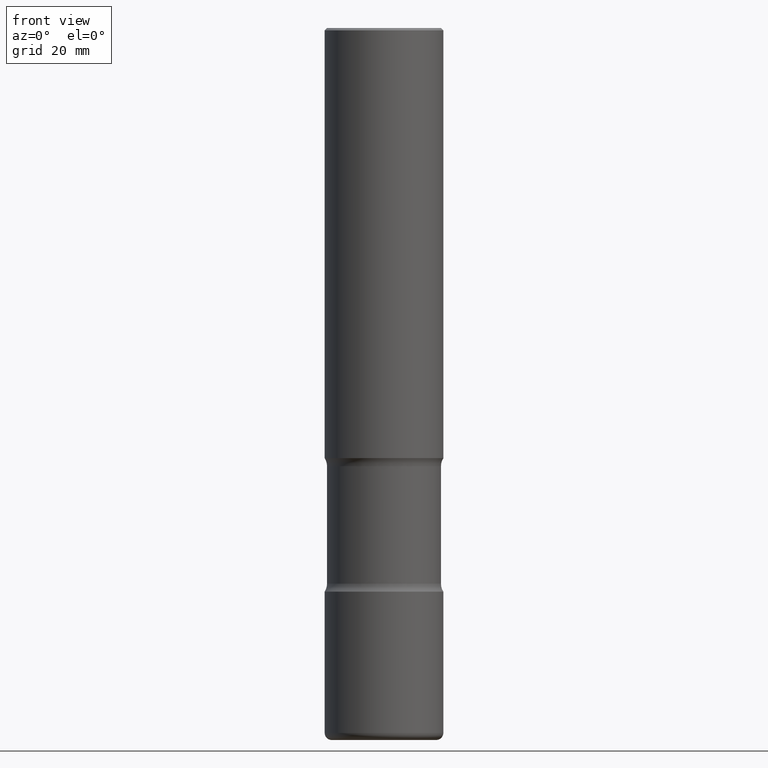
[diagram: clean part render]
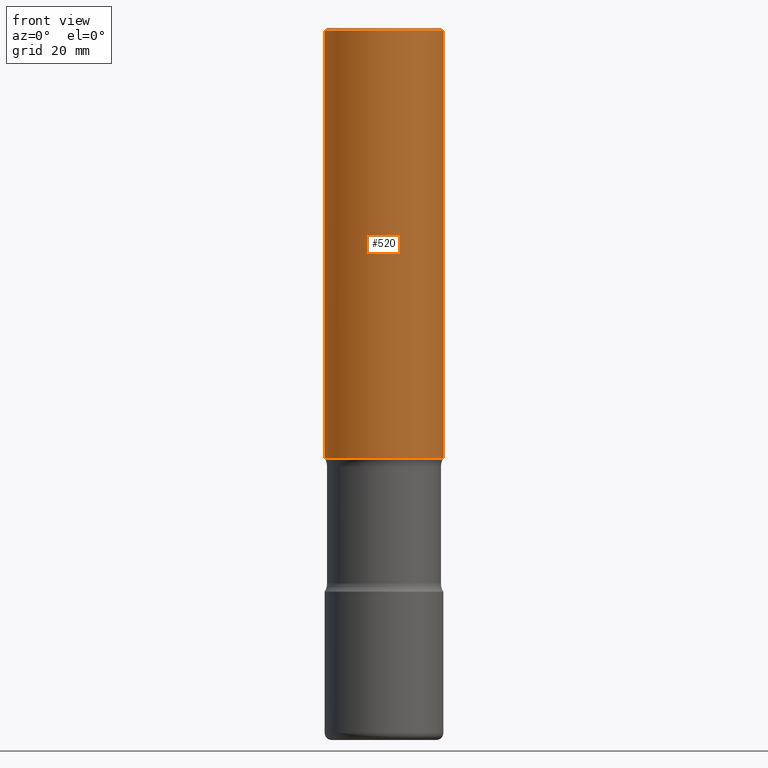
[diagram: same view with one face highlighted and labeled with its STEP entity id]
A machine part, front view. The second image highlights one B-rep face of the part: STEP entity #520.
In plain terms, the highlighted cylindrical surface (partial cylindrical patch) has radius 12.7 mm, axis along (-0, 0, 1).
Its self-contained STEP definition (entity closure, byte-faithful):
#2 = DIRECTION ( 'NONE',  ( -2.445468806185136877E-29, 3.491481338843145188E-15, 1.000000000000000000 ) ) ;
#6 = VECTOR ( 'NONE', #91, 39.37007874015748143 ) ;
#25 = EDGE_CURVE ( 'NONE', #494, #723, #437, .T. ) ;
#27 = DIRECTION ( 'NONE',  ( 1.000000000000000000, -6.982962677686266711E-15, 4.876176775795935793E-29 ) ) ;
#32 = EDGE_LOOP ( 'NONE', ( #552, #567, #670, #726 ) ) ;
#38 = CARTESIAN_POINT ( 'NONE',  ( 8.864824422421122405E-29, -1.265661985330640574E-14, -3.625000000000000888 ) ) ;
#39 = AXIS2_PLACEMENT_3D ( 'NONE', #418, #425, #358 ) ;
#63 = EDGE_CURVE ( 'NONE', #355, #236, #643, .T. ) ;
#80 = CARTESIAN_POINT ( 'NONE',  ( -0.4999999999999997780, 3.552713678800499352E-15, -2.459467545127452050E-29 ) ) ;
#91 = DIRECTION ( 'NONE',  ( -2.445468806185136877E-29, 3.491481338843145188E-15, 1.000000000000000000 ) ) ;
#108 = CARTESIAN_POINT ( 'NONE',  ( -0.4999999999999996114, 3.421651712066267296E-15, -0.02000000000000010797 ) ) ;
#160 = CYLINDRICAL_SURFACE ( 'NONE', #228, 0.4999999999999997780 ) ;
#184 = CIRCLE ( 'NONE', #311, 0.5000000000000000000 ) ;
#228 = AXIS2_PLACEMENT_3D ( 'NONE', #586, #397, #27 ) ;
#235 = EDGE_CURVE ( 'NONE', #236, #723, #394, .T. ) ;
#236 = VERTEX_POINT ( 'NONE', #108 ) ;
#241 = DIRECTION ( 'NONE',  ( 1.000000000000000000, -6.982962677686266711E-15, 0.000000000000000000 ) ) ;
#293 = DIRECTION ( 'NONE',  ( -2.445468806185136597E-29, 3.491481338843145583E-15, 1.000000000000000000 ) ) ;
#311 = AXIS2_PLACEMENT_3D ( 'NONE', #38, #293, #241 ) ;
#355 = VERTEX_POINT ( 'NONE', #396 ) ;
#358 = DIRECTION ( 'NONE',  ( 1.000000000000000000, -6.982962677686266711E-15, 0.000000000000000000 ) ) ;
#372 = CARTESIAN_POINT ( 'NONE',  ( 0.5000000000000000000, -1.614810119214954068E-14, -3.625000000000000888 ) ) ;
#394 = CIRCLE ( 'NONE', #39, 0.4999999999999996114 ) ;
#396 = CARTESIAN_POINT ( 'NONE',  ( -0.5000000000000000000, -2.810511061241131620E-15, -3.625000000000000888 ) ) ;
#397 = DIRECTION ( 'NONE',  ( -2.445468806185136597E-29, 3.491481338843145583E-15, 1.000000000000000000 ) ) ;
#418 = CARTESIAN_POINT ( 'NONE',  ( 4.890937612370299433E-31, -6.982962677686328587E-17, -0.02000000000000010797 ) ) ;
#425 = DIRECTION ( 'NONE',  ( -2.445468806185136597E-29, 3.491481338843145583E-15, 1.000000000000000000 ) ) ;
#437 = LINE ( 'NONE', #560, #554 ) ;
#494 = VERTEX_POINT ( 'NONE', #372 ) ;
#520 = ADVANCED_FACE ( 'NONE', ( #526 ), #160, .T. ) ;
#526 = FACE_OUTER_BOUND ( 'NONE', #32, .T. ) ;
#552 = ORIENTED_EDGE ( 'NONE', *, *, #63, .F. ) ;
#554 = VECTOR ( 'NONE', #2, 39.37007874015748143 ) ;
#560 = CARTESIAN_POINT ( 'NONE',  ( 0.4999999999999997780, -3.491481338843131778E-15, 2.438088387897966775E-29 ) ) ;
#567 = ORIENTED_EDGE ( 'NONE', *, *, #787, .T. ) ;
#586 = CARTESIAN_POINT ( 'NONE',  ( 0.000000000000000000, 0.000000000000000000, 0.000000000000000000 ) ) ;
#643 = LINE ( 'NONE', #80, #6 ) ;
#668 = CARTESIAN_POINT ( 'NONE',  ( 0.4999999999999996114, -3.500078625662626318E-15, -0.02000000000000010797 ) ) ;
#670 = ORIENTED_EDGE ( 'NONE', *, *, #25, .T. ) ;
#723 = VERTEX_POINT ( 'NONE', #668 ) ;
#726 = ORIENTED_EDGE ( 'NONE', *, *, #235, .F. ) ;
#787 = EDGE_CURVE ( 'NONE', #355, #494, #184, .T. ) ;